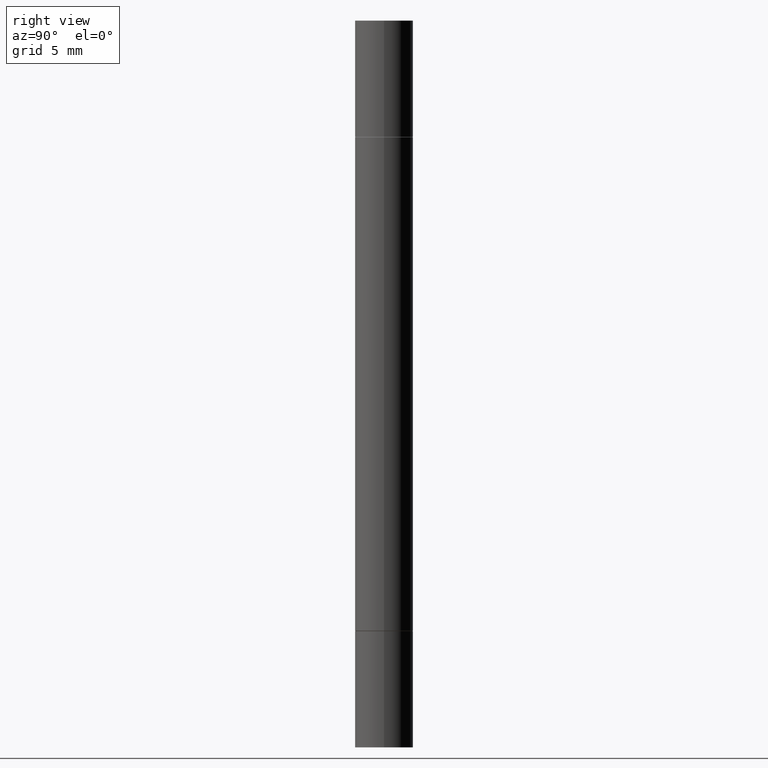
[diagram: clean part render]
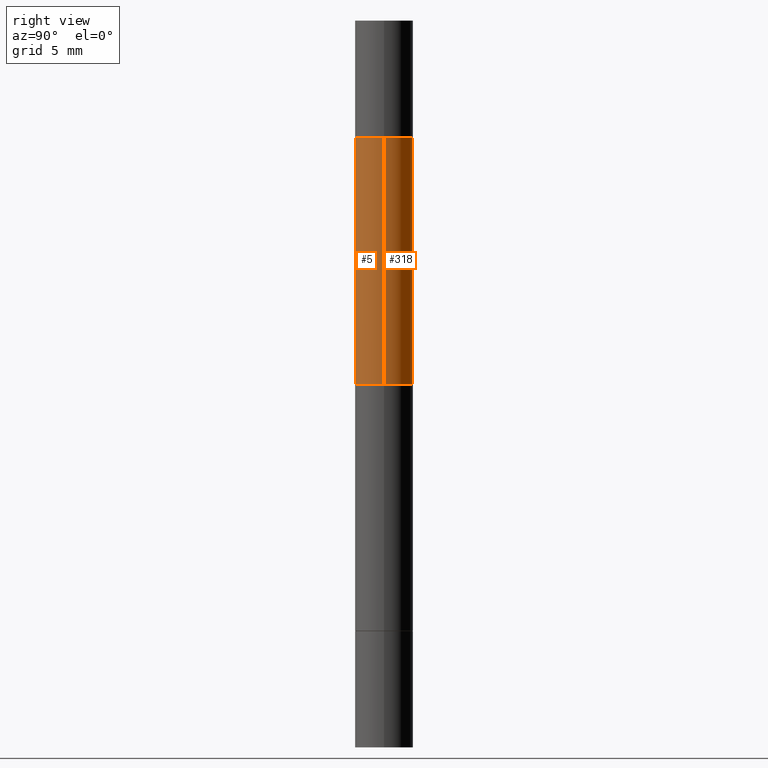
[diagram: same view with one multi-face feature highlighted, each face labeled with its STEP entity id]
A machine part, right view. The highlighted faces form ONE feature: a constant-radius fillet chain: 2 tangent blend faces with common blend radius 2.0002 mm. The faces share edges in the B-rep.
Their STEP definitions:
[1] entity #5 (Cylinder):
#5 = ADVANCED_FACE ( 'NONE', ( #344 ), #143, .T. ) ;
#14 = DIRECTION ( 'NONE',  ( 1.000000000000000000, -6.982962677686273021E-15, 0.000000000000000000 ) ) ;
#27 = DIRECTION ( 'NONE',  ( -2.445468806185136877E-29, -3.492890411551753071E-15, -1.000000000000000000 ) ) ;
#29 = ORIENTED_EDGE ( 'NONE', *, *, #120, .F. ) ;
#66 = EDGE_CURVE ( 'NONE', #560, #137, #512, .T. ) ;
#79 = CARTESIAN_POINT ( 'NONE',  ( 0.000000000000000000, -6.874367895326177521E-15, -1.968499999999999694 ) ) ;
#92 = DIRECTION ( 'NONE',  ( -2.445468806185136877E-29, -3.492890411551753071E-15, -1.000000000000000000 ) ) ;
#120 = EDGE_CURVE ( 'NONE', #245, #649, #582, .T. ) ;
#124 = CARTESIAN_POINT ( 'NONE',  ( -0.07874999999999987566, -6.334103678001671209E-15, -1.968499999999999694 ) ) ;
#137 = VERTEX_POINT ( 'NONE', #153 ) ;
#143 = CYLINDRICAL_SURFACE ( 'NONE', #197, 0.07874999999999987566 ) ;
#153 = CARTESIAN_POINT ( 'NONE',  ( -0.07874999999999987566, -1.729164281672128441E-15, -0.9842499999999998472 ) ) ;
#197 = AXIS2_PLACEMENT_3D ( 'NONE', #79, #332, #14 ) ;
#199 = EDGE_CURVE ( 'NONE', #245, #137, #546, .T. ) ;
#200 = DIRECTION ( 'NONE',  ( 2.445468806185136597E-29, 3.492890411551752677E-15, 1.000000000000000000 ) ) ;
#208 = CARTESIAN_POINT ( 'NONE',  ( 4.041137202220937598E-29, -1.102366490236907793E-15, -0.3159999999999998366 ) ) ;
#221 = AXIS2_PLACEMENT_3D ( 'NONE', #396, #603, #257 ) ;
#245 = VERTEX_POINT ( 'NONE', #571 ) ;
#257 = DIRECTION ( 'NONE',  ( 0.000000000000000000, 1.000000000000000000, -3.469013325287958815E-15 ) ) ;
#267 = ORIENTED_EDGE ( 'NONE', *, *, #66, .F. ) ;
#332 = DIRECTION ( 'NONE',  ( -2.445468806185136597E-29, -3.492890411551752677E-15, -1.000000000000000000 ) ) ;
#341 = ORIENTED_EDGE ( 'NONE', *, *, #199, .T. ) ;
#344 = FACE_OUTER_BOUND ( 'NONE', #492, .T. ) ;
#362 = VECTOR ( 'NONE', #92, 39.37007874015748143 ) ;
#367 = VECTOR ( 'NONE', #27, 39.37007874015748143 ) ;
#396 = CARTESIAN_POINT ( 'NONE',  ( 2.406952672487720357E-29, -3.436490507756365459E-15, -0.9842499999999998472 ) ) ;
#460 = DIRECTION ( 'NONE',  ( 1.000000000000000000, -6.982962677686267499E-15, 0.000000000000000000 ) ) ;
#492 = EDGE_LOOP ( 'NONE', ( #29, #341, #267, #497 ) ) ;
#497 = ORIENTED_EDGE ( 'NONE', *, *, #680, .F. ) ;
#504 = CARTESIAN_POINT ( 'NONE',  ( 0.07874999999999987566, -2.819336809864428295E-15, -0.9842499999999998472 ) ) ;
#512 = CIRCLE ( 'NONE', #221, 0.07874999999999987566 ) ;
#546 = LINE ( 'NONE', #124, #367 ) ;
#560 = VERTEX_POINT ( 'NONE', #504 ) ;
#568 = CARTESIAN_POINT ( 'NONE',  ( 0.07874999999999987566, -7.424276206193971655E-15, -1.968499999999999694 ) ) ;
#571 = CARTESIAN_POINT ( 'NONE',  ( -0.07874999999999997280, -5.621022729123983254E-16, -0.3159999999999998366 ) ) ;
#582 = CIRCLE ( 'NONE', #675, 0.07874999999999997280 ) ;
#603 = DIRECTION ( 'NONE',  ( -0.000000000000000000, -3.492185875197449130E-15, -1.000000000000000000 ) ) ;
#625 = LINE ( 'NONE', #568, #362 ) ;
#649 = VERTEX_POINT ( 'NONE', #679 ) ;
#675 = AXIS2_PLACEMENT_3D ( 'NONE', #208, #200, #460 ) ;
#679 = CARTESIAN_POINT ( 'NONE',  ( 0.07874999999999997280, -1.652274801104699758E-15, -0.3159999999999998366 ) ) ;
#680 = EDGE_CURVE ( 'NONE', #649, #560, #625, .T. ) ;
[2] entity #318 (Cylinder):
#22 = CIRCLE ( 'NONE', #556, 0.07874999999999987566 ) ;
#27 = DIRECTION ( 'NONE',  ( -2.445468806185136877E-29, -3.492890411551753071E-15, -1.000000000000000000 ) ) ;
#54 = AXIS2_PLACEMENT_3D ( 'NONE', #520, #677, #104 ) ;
#92 = DIRECTION ( 'NONE',  ( -2.445468806185136877E-29, -3.492890411551753071E-15, -1.000000000000000000 ) ) ;
#104 = DIRECTION ( 'NONE',  ( 1.000000000000000000, -6.982962677686273021E-15, 0.000000000000000000 ) ) ;
#109 = CARTESIAN_POINT ( 'NONE',  ( 4.041137202220937598E-29, -1.102366490236907793E-15, -0.3159999999999998366 ) ) ;
#124 = CARTESIAN_POINT ( 'NONE',  ( -0.07874999999999987566, -6.334103678001671209E-15, -1.968499999999999694 ) ) ;
#127 = ORIENTED_EDGE ( 'NONE', *, *, #199, .F. ) ;
#137 = VERTEX_POINT ( 'NONE', #153 ) ;
#153 = CARTESIAN_POINT ( 'NONE',  ( -0.07874999999999987566, -1.729164281672128441E-15, -0.9842499999999998472 ) ) ;
#176 = ORIENTED_EDGE ( 'NONE', *, *, #660, .F. ) ;
#199 = EDGE_CURVE ( 'NONE', #245, #137, #546, .T. ) ;
#245 = VERTEX_POINT ( 'NONE', #571 ) ;
#314 = DIRECTION ( 'NONE',  ( -0.000000000000000000, -3.492185875197449130E-15, -1.000000000000000000 ) ) ;
#318 = ADVANCED_FACE ( 'NONE', ( #527 ), #578, .T. ) ;
#319 = ORIENTED_EDGE ( 'NONE', *, *, #680, .T. ) ;
#362 = VECTOR ( 'NONE', #92, 39.37007874015748143 ) ;
#367 = VECTOR ( 'NONE', #27, 39.37007874015748143 ) ;
#384 = DIRECTION ( 'NONE',  ( 2.445468806185136597E-29, 3.492890411551752677E-15, 1.000000000000000000 ) ) ;
#405 = CIRCLE ( 'NONE', #666, 0.07874999999999997280 ) ;
#408 = DIRECTION ( 'NONE',  ( 0.000000000000000000, 1.000000000000000000, -3.469013325287958815E-15 ) ) ;
#434 = DIRECTION ( 'NONE',  ( 1.000000000000000000, -6.982962677686267499E-15, 0.000000000000000000 ) ) ;
#435 = EDGE_CURVE ( 'NONE', #649, #245, #405, .T. ) ;
#467 = CARTESIAN_POINT ( 'NONE',  ( 2.406952672487720357E-29, -3.436490507756365459E-15, -0.9842499999999998472 ) ) ;
#469 = ORIENTED_EDGE ( 'NONE', *, *, #435, .F. ) ;
#504 = CARTESIAN_POINT ( 'NONE',  ( 0.07874999999999987566, -2.819336809864428295E-15, -0.9842499999999998472 ) ) ;
#520 = CARTESIAN_POINT ( 'NONE',  ( 0.000000000000000000, -6.874367895326177521E-15, -1.968499999999999694 ) ) ;
#527 = FACE_OUTER_BOUND ( 'NONE', #552, .T. ) ;
#546 = LINE ( 'NONE', #124, #367 ) ;
#552 = EDGE_LOOP ( 'NONE', ( #127, #469, #319, #176 ) ) ;
#556 = AXIS2_PLACEMENT_3D ( 'NONE', #467, #314, #408 ) ;
#560 = VERTEX_POINT ( 'NONE', #504 ) ;
#568 = CARTESIAN_POINT ( 'NONE',  ( 0.07874999999999987566, -7.424276206193971655E-15, -1.968499999999999694 ) ) ;
#571 = CARTESIAN_POINT ( 'NONE',  ( -0.07874999999999997280, -5.621022729123983254E-16, -0.3159999999999998366 ) ) ;
#578 = CYLINDRICAL_SURFACE ( 'NONE', #54, 0.07874999999999987566 ) ;
#625 = LINE ( 'NONE', #568, #362 ) ;
#649 = VERTEX_POINT ( 'NONE', #679 ) ;
#660 = EDGE_CURVE ( 'NONE', #137, #560, #22, .T. ) ;
#666 = AXIS2_PLACEMENT_3D ( 'NONE', #109, #384, #434 ) ;
#677 = DIRECTION ( 'NONE',  ( -2.445468806185136597E-29, -3.492890411551752677E-15, -1.000000000000000000 ) ) ;
#679 = CARTESIAN_POINT ( 'NONE',  ( 0.07874999999999997280, -1.652274801104699758E-15, -0.3159999999999998366 ) ) ;
#680 = EDGE_CURVE ( 'NONE', #649, #560, #625, .T. ) ;